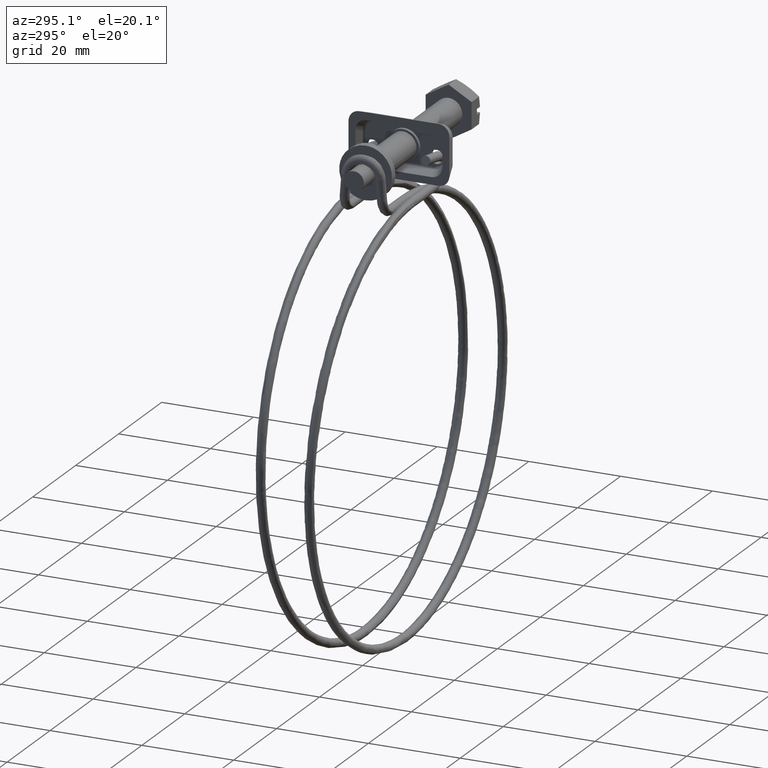
[diagram: clean part render]
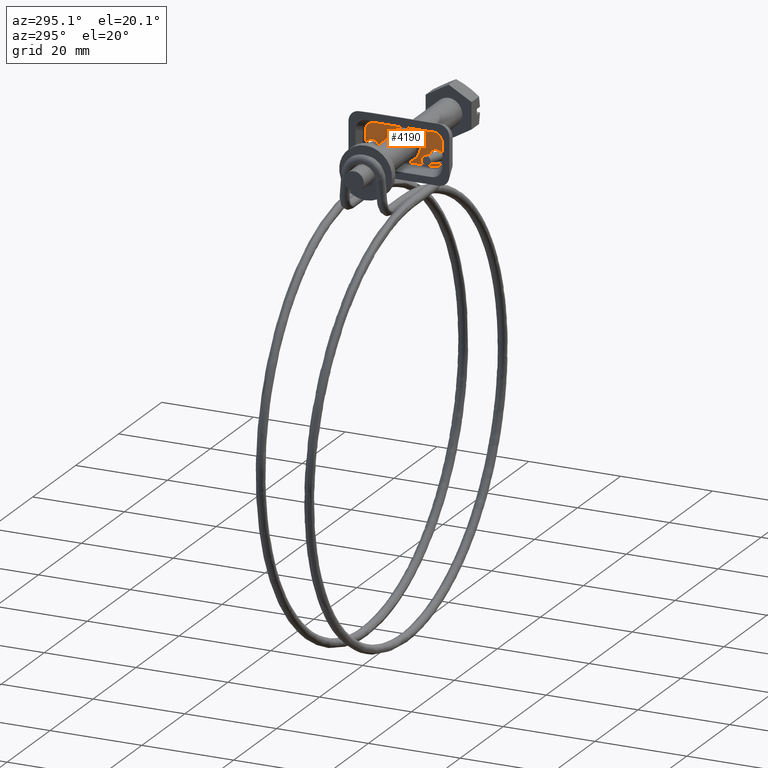
[diagram: same view with one face highlighted and labeled with its STEP entity id]
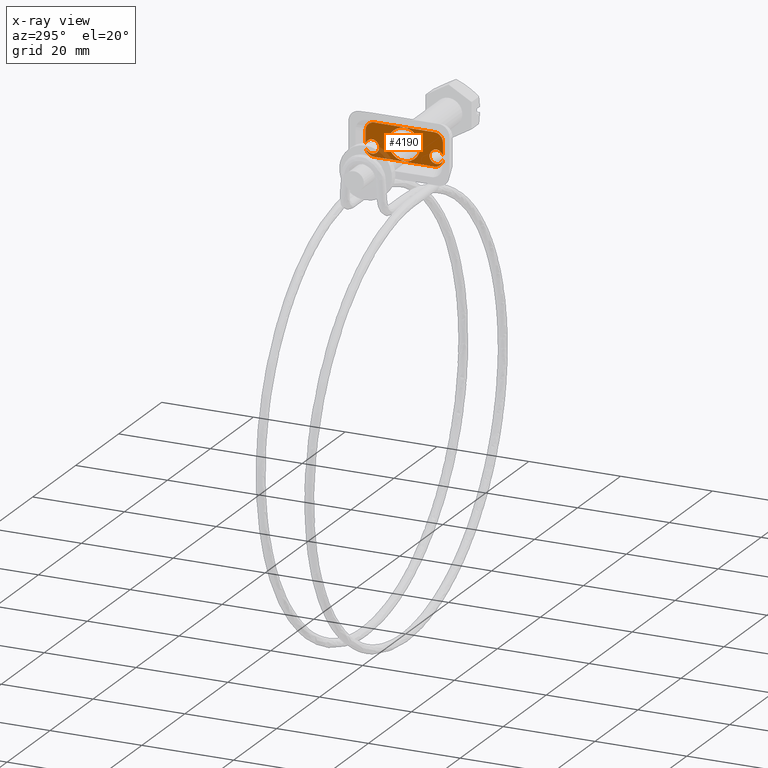
[diagram: x-ray of the same camera — body ghosted, the highlighted face saturated]
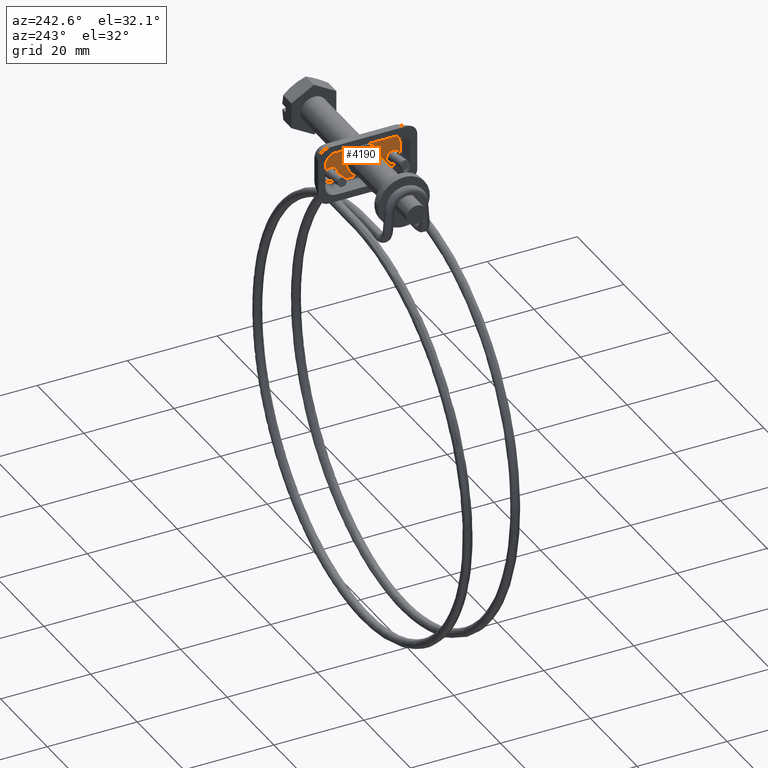
[diagram: same view with one face highlighted and labeled with its STEP entity id]
A machine part, auxiliary view. The second image highlights one B-rep face of the part: STEP entity #4190.
The next image is the same camera in x-ray: the body ghosted, the highlighted face saturated — about 9% of this face is hidden behind the body in this view.
A second angle (auxiliary view) of the same face is appended — the face is thin or edge-on in the first view.
In plain terms, the highlighted face is a freeform B-spline surface patch.
Its self-contained STEP definition (entity closure, byte-faithful):
#1883=CARTESIAN_POINT('',(-36.200000000000003,-5.728324125052593,-0.704487291693810));
#1884=VERTEX_POINT('',#1883);
#1885=CARTESIAN_POINT('',(-36.200000000000003,-8.438446995591788,-1.074711579191980));
#1886=VERTEX_POINT('',#1885);
#1887=CARTESIAN_POINT('',(-36.200000000000003,-5.728324125052593,-0.704487291693810));
#1888=CARTESIAN_POINT('',(-36.200000000000003,-6.104555623819238,-0.103058156270040));
#1889=CARTESIAN_POINT('',(-36.200000000000003,-6.808142015089159,-0.012320426427032));
#1890=CARTESIAN_POINT('',(-36.200000000000010,-8.075999828347010,0.151188335490741));
#1891=CARTESIAN_POINT('',(-36.200000000000003,-8.438446995591784,-1.074711579191981));
#1899=(BOUNDED_CURVE()B_SPLINE_CURVE(2,(#1887,#1888,#1889,#1890,#1891),.UNSPECIFIED.,.F.,.U.)B_SPLINE_CURVE_WITH_KNOTS((3,2,3),(0.594758611921717,0.750000000000000,1.0),.UNSPECIFIED.)CURVE()GEOMETRIC_REPRESENTATION_ITEM()RATIONAL_B_SPLINE_CURVE((0.887540518946103,0.851650052204749,1.0,0.761097942965372,1.0))REPRESENTATION_ITEM(''));
#1900=EDGE_CURVE('',#1884,#1886,#1899,.T.);
#1956=CARTESIAN_POINT('',(-36.200000000000003,-5.502797802376077,-1.591572809445519));
#1957=VERTEX_POINT('',#1956);
#1963=CARTESIAN_POINT('',(-36.200000000000003,-8.409378136258292,-2.013471780176190));
#1964=VERTEX_POINT('',#1963);
#1965=CARTESIAN_POINT('',(-36.200000000000003,-8.409378136258290,-2.013471780176189));
#1966=CARTESIAN_POINT('',(-36.200000000000010,-7.971777714804319,-3.214598093686211));
#1967=CARTESIAN_POINT('',(-36.200000000000003,-6.716465370576391,-2.972958965456003));
#1968=CARTESIAN_POINT('',(-36.200000000000017,-5.573834358432499,-2.753010230838033));
#1969=CARTESIAN_POINT('',(-36.200000000000003,-5.502797802376077,-1.591572809445520));
#1977=(BOUNDED_CURVE()B_SPLINE_CURVE(2,(#1965,#1966,#1967,#1968,#1969),.UNSPECIFIED.,.F.,.U.)B_SPLINE_CURVE_WITH_KNOTS((3,2,3),(0.0,0.250000000000000,0.482545984464806),.UNSPECIFIED.)CURVE()GEOMETRIC_REPRESENTATION_ITEM()RATIONAL_B_SPLINE_CURVE((1.0,0.761097942965372,1.0,0.777777143824861,0.968970550528351))REPRESENTATION_ITEM(''));
#1978=EDGE_CURVE('',#1964,#1957,#1977,.T.);
#2025=CARTESIAN_POINT('',(-36.200000000000003,-5.502797802376077,-1.591572809445520));
#2026=CARTESIAN_POINT('',(-36.200000000000003,-5.498580561941322,-1.522621538045982));
#2027=CARTESIAN_POINT('',(-36.200000000000003,-5.500718614089884,-1.453574512785301));
#2028=CARTESIAN_POINT('',(-36.200000000000010,-5.513269056385316,-1.048266014211891));
#2029=CARTESIAN_POINT('',(-36.200000000000003,-5.728324125052593,-0.704487291693810));
#2037=(BOUNDED_CURVE()B_SPLINE_CURVE(2,(#2025,#2026,#2027,#2028,#2029),.UNSPECIFIED.,.F.,.U.)B_SPLINE_CURVE_WITH_KNOTS((3,2,3),(0.482545984464806,0.500000000000000,0.594758611921717),.UNSPECIFIED.)CURVE()GEOMETRIC_REPRESENTATION_ITEM()RATIONAL_B_SPLINE_CURVE((0.968970550528351,0.983320799140511,1.0,0.909447890760623,0.887540518946103))REPRESENTATION_ITEM(''));
#2038=EDGE_CURVE('',#1957,#1884,#2037,.T.);
#2086=CARTESIAN_POINT('',(-36.200000000000003,5.910109958172152,-2.530601618824958));
#2087=VERTEX_POINT('',#2086);
#2088=CARTESIAN_POINT('',(-36.200000000000003,8.409378136258361,-2.013471780175256));
#2089=VERTEX_POINT('',#2088);
#2090=CARTESIAN_POINT('',(-36.200000000000010,5.910109958172152,-2.530601618824959));
#2091=CARTESIAN_POINT('',(-36.200000000000010,6.242049675783711,-2.881637155840025));
#2092=CARTESIAN_POINT('',(-36.200000000000003,6.716465370576574,-2.972958965456092));
#2093=CARTESIAN_POINT('',(-36.200000000000010,7.971777714805023,-3.214598093685992));
#2094=CARTESIAN_POINT('',(-36.200000000000003,8.409378136258351,-2.013471780175252));
#2102=(BOUNDED_CURVE()B_SPLINE_CURVE(2,(#2090,#2091,#2092,#2093,#2094),.UNSPECIFIED.,.F.,.U.)B_SPLINE_CURVE_WITH_KNOTS((3,2,3),(0.639026038671683,0.750000000000000,1.0),.UNSPECIFIED.)CURVE()GEOMETRIC_REPRESENTATION_ITEM()RATIONAL_B_SPLINE_CURVE((0.882052944107901,0.893952369445485,1.0,0.761097942965258,1.0))REPRESENTATION_ITEM(''));
#2103=EDGE_CURVE('',#2087,#2089,#2102,.T.);
#2159=CARTESIAN_POINT('',(-36.200000000000003,5.502797802368999,-1.408427190665419));
#2160=VERTEX_POINT('',#2159);
#2166=CARTESIAN_POINT('',(-36.200000000000003,8.438446995591820,-1.074711579193044));
#2167=VERTEX_POINT('',#2166);
#2168=CARTESIAN_POINT('',(-36.200000000000003,8.438446995591820,-1.074711579193044));
#2169=CARTESIAN_POINT('',(-36.200000000000010,8.075999828347822,0.151188335490383));
#2170=CARTESIAN_POINT('',(-36.200000000000003,6.808142015089454,-0.012320426426957));
#2171=CARTESIAN_POINT('',(-36.200000000000017,5.578488070779255,-0.170902242083570));
#2172=CARTESIAN_POINT('',(-36.200000000000003,5.502797802368999,-1.408427190665420));
#2180=(BOUNDED_CURVE()B_SPLINE_CURVE(2,(#2168,#2169,#2170,#2171,#2172),.UNSPECIFIED.,.F.,.U.)B_SPLINE_CURVE_WITH_KNOTS((3,2,3),(0.0,0.250000000000000,0.494224959505245),.UNSPECIFIED.)CURVE()GEOMETRIC_REPRESENTATION_ITEM()RATIONAL_B_SPLINE_CURVE((1.0,0.761097942965258,1.0,0.766616619179882,0.989217612199687))REPRESENTATION_ITEM(''));
#2181=EDGE_CURVE('',#2167,#2160,#2180,.T.);
#2228=CARTESIAN_POINT('',(-36.200000000000003,5.502797802368999,-1.408427190665419));
#2229=CARTESIAN_POINT('',(-36.200000000000003,5.501418096122098,-1.430985188385793));
#2230=CARTESIAN_POINT('',(-36.200000000000003,5.500718614089606,-1.453574512785245));
#2231=CARTESIAN_POINT('',(-36.200000000000003,5.481406834419280,-2.077236072967832));
#2232=CARTESIAN_POINT('',(-36.200000000000003,5.910109958172151,-2.530601618824959));
#2240=(BOUNDED_CURVE()B_SPLINE_CURVE(2,(#2228,#2229,#2230,#2231,#2232),.UNSPECIFIED.,.F.,.U.)B_SPLINE_CURVE_WITH_KNOTS((3,2,3),(0.494224959505244,0.500000000000000,0.639026038671683),.UNSPECIFIED.)CURVE()GEOMETRIC_REPRESENTATION_ITEM()RATIONAL_B_SPLINE_CURVE((0.989217612199687,0.994481323785376,1.0,0.867145573519773,0.882052944107901))REPRESENTATION_ITEM(''));
#2241=EDGE_CURVE('',#2160,#2087,#2240,.T.);
#2319=CARTESIAN_POINT('',(-36.200000000000003,-3.493471794474931,0.213669888398212));
#2320=VERTEX_POINT('',#2319);
#2326=CARTESIAN_POINT('',(-36.200000000000003,0.0,3.500000000000000));
#2327=VERTEX_POINT('',#2326);
#2328=CARTESIAN_POINT('',(-36.200000000000003,0.0,3.500000000000000));
#2329=CARTESIAN_POINT('',(-36.200000000000003,-3.292471234120413,3.500000000000000));
#2330=CARTESIAN_POINT('',(-36.200000000000003,-3.493471794474931,0.213669888398212));
#2338=(BOUNDED_CURVE()B_SPLINE_CURVE(2,(#2328,#2329,#2330),.UNSPECIFIED.,.F.,.U.)B_SPLINE_CURVE_WITH_KNOTS((3,3),(0.500000000000000,0.739332962239378),.UNSPECIFIED.)CURVE()GEOMETRIC_REPRESENTATION_ITEM()RATIONAL_B_SPLINE_CURVE((1.0,0.719603993286200,0.976072041667650))REPRESENTATION_ITEM(''));
#2339=EDGE_CURVE('',#2327,#2320,#2338,.T.);
#2341=CARTESIAN_POINT('',(-36.200000000000003,3.475533342266994,-0.413119821347775));
#2342=VERTEX_POINT('',#2341);
#2343=CARTESIAN_POINT('',(-36.200000000000003,3.475533342266993,-0.413119821347775));
#2344=CARTESIAN_POINT('',(-36.199999999999996,3.500000000000000,-0.207284418831326));
#2345=CARTESIAN_POINT('',(-36.200000000000003,3.500000000000000,0.0));
#2346=CARTESIAN_POINT('',(-36.200000000000003,3.500000000000000,3.500000000000000));
#2347=CARTESIAN_POINT('',(-36.200000000000003,0.0,3.500000000000000));
#2355=(BOUNDED_CURVE()B_SPLINE_CURVE(2,(#2343,#2344,#2345,#2346,#2347),.UNSPECIFIED.,.F.,.U.)B_SPLINE_CURVE_WITH_KNOTS((3,2,3),(0.229562473510867,0.250000000000000,0.500000000000000),.UNSPECIFIED.)CURVE()GEOMETRIC_REPRESENTATION_ITEM()RATIONAL_B_SPLINE_CURVE((0.956026754178522,0.976055948328051,1.0,0.707106781186547,1.0))REPRESENTATION_ITEM(''));
#2356=EDGE_CURVE('',#2342,#2327,#2355,.T.);
#2400=CARTESIAN_POINT('',(-36.200000000000003,0.0,-3.500000000000000));
#2401=VERTEX_POINT('',#2400);
#2402=CARTESIAN_POINT('',(-36.200000000000003,0.0,-3.500000000000000));
#2403=CARTESIAN_POINT('',(-36.200000000000003,3.108610840741298,-3.500000000000000));
#2404=CARTESIAN_POINT('',(-36.199999999999996,3.475533342266994,-0.413119821347775));
#2412=(BOUNDED_CURVE()B_SPLINE_CURVE(2,(#2402,#2403,#2404),.UNSPECIFIED.,.F.,.U.)B_SPLINE_CURVE_WITH_KNOTS((3,3),(0.0,0.229562473510867),.UNSPECIFIED.)CURVE()GEOMETRIC_REPRESENTATION_ITEM()RATIONAL_B_SPLINE_CURVE((1.0,0.731050832858497,0.956026754178522))REPRESENTATION_ITEM(''));
#2413=EDGE_CURVE('',#2401,#2342,#2412,.T.);
#2415=CARTESIAN_POINT('',(-36.200000000000003,-3.493471794474930,0.213669888398212));
#2416=CARTESIAN_POINT('',(-36.200000000000003,-3.500000000000000,0.106934671571347));
#2417=CARTESIAN_POINT('',(-36.200000000000003,-3.500000000000000,0.0));
#2418=CARTESIAN_POINT('',(-36.200000000000003,-3.500000000000000,-3.500000000000000));
#2419=CARTESIAN_POINT('',(-36.200000000000003,0.0,-3.500000000000000));
#2427=(BOUNDED_CURVE()B_SPLINE_CURVE(2,(#2415,#2416,#2417,#2418,#2419),.UNSPECIFIED.,.F.,.U.)B_SPLINE_CURVE_WITH_KNOTS((3,2,3),(0.739332962239379,0.750000000000000,1.0),.UNSPECIFIED.)CURVE()GEOMETRIC_REPRESENTATION_ITEM()RATIONAL_B_SPLINE_CURVE((0.976072041667652,0.987502787900348,1.0,0.707106781186547,1.0))REPRESENTATION_ITEM(''));
#2428=EDGE_CURVE('',#2320,#2401,#2427,.T.);
#2487=CARTESIAN_POINT('',(-36.200000000000003,-6.552455856614260,-3.613999483098555));
#2488=VERTEX_POINT('',#2487);
#2532=CARTESIAN_POINT('',(-36.200000000000003,-6.552455856614260,-3.613999483098555));
#2533=CARTESIAN_POINT('',(-36.199999999999996,-8.142356781997027,-3.613999483098620));
#2534=CARTESIAN_POINT('',(-36.200000000000003,-8.409378136258329,-2.013471780176166));
#2542=(BOUNDED_CURVE()B_SPLINE_CURVE(2,(#2532,#2533,#2534),.UNSPECIFIED.,.F.,.U.)CURVE()GEOMETRIC_REPRESENTATION_ITEM()QUASI_UNIFORM_CURVE()RATIONAL_B_SPLINE_CURVE((1.0,0.790787445489052,1.0))REPRESENTATION_ITEM(''));
#2543=EDGE_CURVE('',#2488,#1964,#2542,.T.);
#2637=CARTESIAN_POINT('',(-36.200000000000003,6.552455856614290,-3.613999483098555));
#2638=VERTEX_POINT('',#2637);
#2660=CARTESIAN_POINT('',(-36.200000000000003,6.552455856614290,-3.613999483098555));
#2661=CARTESIAN_POINT('',(-36.200000000000003,-6.552455856614260,-3.613999483098555));
#2662=QUASI_UNIFORM_CURVE('',1,(#2660,#2661),.UNSPECIFIED.,.F.,.U.);
#2663=EDGE_CURVE('',#2638,#2488,#2662,.T.);
#2784=CARTESIAN_POINT('',(-36.200000000000003,8.409378136258361,-2.013471780175256));
#2785=CARTESIAN_POINT('',(-36.199999999999996,8.142356781997565,-3.613999483098475));
#2786=CARTESIAN_POINT('',(-36.200000000000003,6.552455856614280,-3.613999483098562));
#2794=(BOUNDED_CURVE()B_SPLINE_CURVE(2,(#2784,#2785,#2786),.UNSPECIFIED.,.F.,.U.)CURVE()GEOMETRIC_REPRESENTATION_ITEM()QUASI_UNIFORM_CURVE()RATIONAL_B_SPLINE_CURVE((1.0,0.790787445488940,1.0))REPRESENTATION_ITEM(''));
#2795=EDGE_CURVE('',#2089,#2638,#2794,.T.);
#2816=CARTESIAN_POINT('',(-36.200000000000003,-8.438446995591788,1.659899352054025));
#2817=VERTEX_POINT('',#2816);
#2831=CARTESIAN_POINT('',(-36.200000000000003,-8.438446995591788,-1.074711579191980));
#2832=CARTESIAN_POINT('',(-36.200000000000003,-8.438446995591788,1.659899352054025));
#2833=QUASI_UNIFORM_CURVE('',1,(#2831,#2832),.UNSPECIFIED.,.F.,.U.);
#2834=EDGE_CURVE('',#1886,#2817,#2833,.T.);
#2960=CARTESIAN_POINT('',(-36.200000000000003,-6.552455856614260,3.613998483098680));
#2961=VERTEX_POINT('',#2960);
#2975=CARTESIAN_POINT('',(-36.200000000000003,-8.438446995591779,1.659899352054033));
#2976=CARTESIAN_POINT('',(-36.199999999999996,-8.438446995591772,3.613998483098672));
#2977=CARTESIAN_POINT('',(-36.200000000000003,-6.552455856614251,3.613998483098665));
#2985=(BOUNDED_CURVE()B_SPLINE_CURVE(2,(#2975,#2976,#2977),.UNSPECIFIED.,.F.,.U.)CURVE()GEOMETRIC_REPRESENTATION_ITEM()QUASI_UNIFORM_CURVE()RATIONAL_B_SPLINE_CURVE((1.0,0.736600277350791,1.0))REPRESENTATION_ITEM(''));
#2986=EDGE_CURVE('',#2817,#2961,#2985,.T.);
#3070=CARTESIAN_POINT('',(-36.200000000000003,6.552455856614140,3.613998483098650));
#3071=VERTEX_POINT('',#3070);
#3085=CARTESIAN_POINT('',(-36.200000000000003,-6.552455856614260,3.613998483098680));
#3086=CARTESIAN_POINT('',(-36.200000000000003,6.552455856614140,3.613998483098650));
#3087=QUASI_UNIFORM_CURVE('',1,(#3085,#3086),.UNSPECIFIED.,.F.,.U.);
#3088=EDGE_CURVE('',#2961,#3071,#3087,.T.);
#3113=CARTESIAN_POINT('',(-36.200000000000003,8.438446995591759,1.659899352054280));
#3114=VERTEX_POINT('',#3113);
#3136=CARTESIAN_POINT('',(-36.200000000000003,8.438446995591759,1.659899352054280));
#3137=CARTESIAN_POINT('',(-36.200000000000003,8.438446995591820,-1.074711579193044));
#3138=QUASI_UNIFORM_CURVE('',1,(#3136,#3137),.UNSPECIFIED.,.F.,.U.);
#3139=EDGE_CURVE('',#3114,#2167,#3138,.T.);
#3197=CARTESIAN_POINT('',(-36.200000000000003,6.552455856614149,3.613998483098665));
#3198=CARTESIAN_POINT('',(-36.200000000000010,8.438446995591537,3.613998483098739));
#3199=CARTESIAN_POINT('',(-36.200000000000003,8.438446995591747,1.659899352054262));
#3207=(BOUNDED_CURVE()B_SPLINE_CURVE(2,(#3197,#3198,#3199),.UNSPECIFIED.,.F.,.U.)CURVE()GEOMETRIC_REPRESENTATION_ITEM()QUASI_UNIFORM_CURVE()RATIONAL_B_SPLINE_CURVE((1.0,0.736600277350815,1.0))REPRESENTATION_ITEM(''));
#3208=EDGE_CURVE('',#3071,#3114,#3207,.T.);
#4163=CARTESIAN_POINT('',(-36.200000000000003,-9.281447817740716,3.975036873826210));
#4164=CARTESIAN_POINT('',(-36.200000000000003,-9.281447817740716,-3.975037615332734));
#4165=CARTESIAN_POINT('',(-36.200000000000003,9.281448270414316,3.975036873826210));
#4166=CARTESIAN_POINT('',(-36.200000000000003,9.281448270414316,-3.975037615332734));
#4167=B_SPLINE_SURFACE_WITH_KNOTS('',1,1,((#4163,#4165),(#4164,#4166)),.UNSPECIFIED.,.F.,.F.,.U.,(2,2),(2,2),(0.0,7.950074489158943),(0.0,18.562896088155028),.UNSPECIFIED.);
#4168=ORIENTED_EDGE('',*,*,#2663,.T.);
#4169=ORIENTED_EDGE('',*,*,#2543,.T.);
#4170=ORIENTED_EDGE('',*,*,#1978,.T.);
#4171=ORIENTED_EDGE('',*,*,#2038,.T.);
#4172=ORIENTED_EDGE('',*,*,#1900,.T.);
#4173=ORIENTED_EDGE('',*,*,#2834,.T.);
#4174=ORIENTED_EDGE('',*,*,#2986,.T.);
#4175=ORIENTED_EDGE('',*,*,#3088,.T.);
#4176=ORIENTED_EDGE('',*,*,#3208,.T.);
#4177=ORIENTED_EDGE('',*,*,#3139,.T.);
#4178=ORIENTED_EDGE('',*,*,#2181,.T.);
#4179=ORIENTED_EDGE('',*,*,#2241,.T.);
#4180=ORIENTED_EDGE('',*,*,#2103,.T.);
#4181=ORIENTED_EDGE('',*,*,#2795,.T.);
#4182=EDGE_LOOP('',(#4168,#4169,#4170,#4171,#4172,#4173,#4174,#4175,#4176,#4177,#4178,#4179,#4180,#4181));
#4183=FACE_OUTER_BOUND('',#4182,.T.);
#4184=ORIENTED_EDGE('',*,*,#2339,.T.);
#4185=ORIENTED_EDGE('',*,*,#2428,.T.);
#4186=ORIENTED_EDGE('',*,*,#2413,.T.);
#4187=ORIENTED_EDGE('',*,*,#2356,.T.);
#4188=EDGE_LOOP('',(#4184,#4185,#4186,#4187));
#4189=FACE_BOUND('',#4188,.T.);
#4190=ADVANCED_FACE('',(#4183,#4189),#4167,.F.);